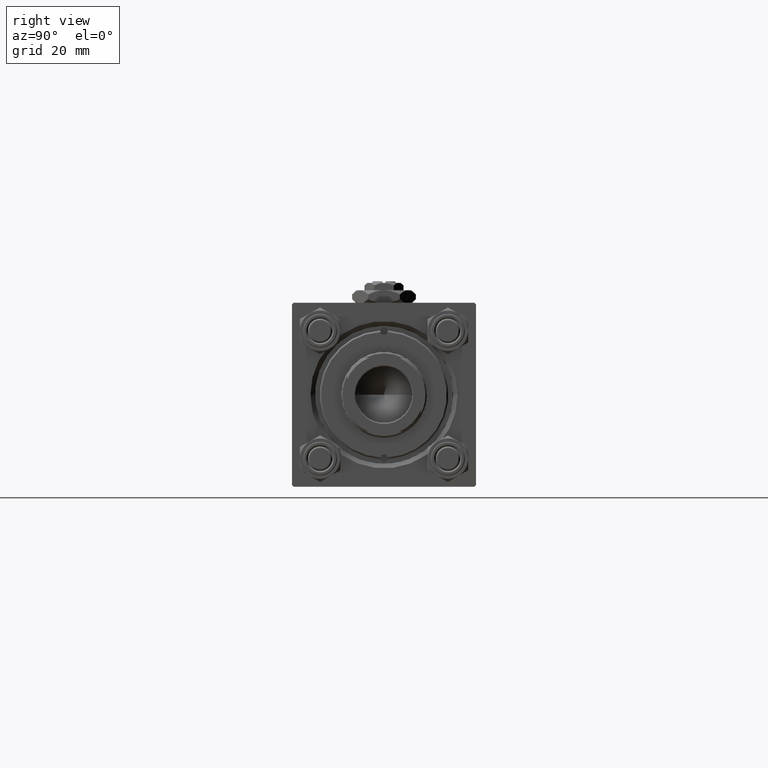
[diagram: clean part render]
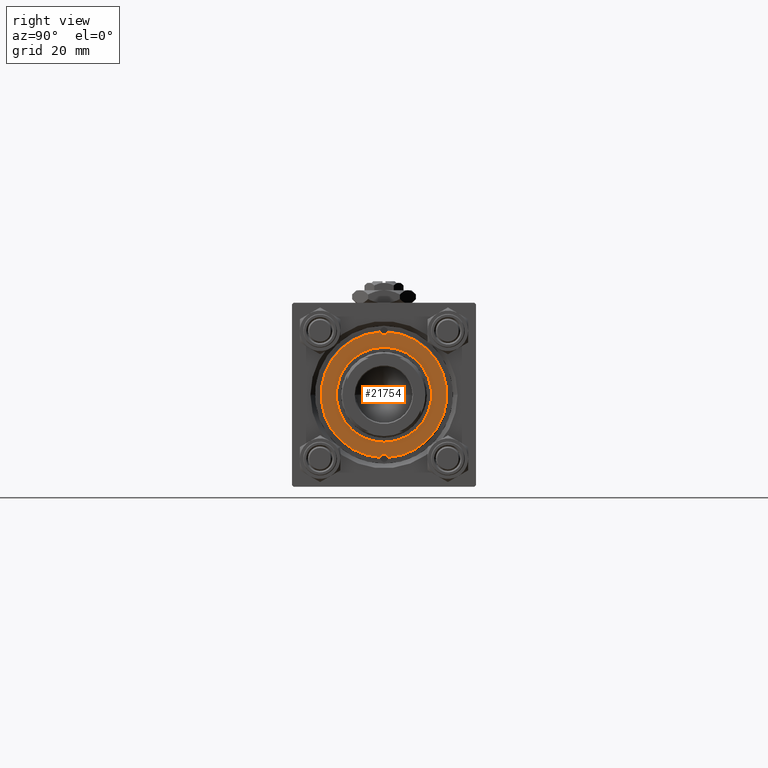
[diagram: same view with one face highlighted and labeled with its STEP entity id]
A machine part, right view. The second image highlights one B-rep face of the part: STEP entity #21754.
In plain terms, the highlighted planar face has unit normal (1, 0, 0).
Its self-contained STEP definition (entity closure, byte-faithful):
#295 = CIRCLE ( 'NONE', #42291, 1.250000000000001110 ) ;
#1180 = CARTESIAN_POINT ( 'NONE',  ( 20.46385542168674476, -1.216807823899045404, 38.69999999999999574 ) ) ;
#4464 = AXIS2_PLACEMENT_3D ( 'NONE', #41651, #46376, #5606 ) ;
#4501 = ORIENTED_EDGE ( 'NONE', *, *, #15216, .F. ) ;
#5257 = AXIS2_PLACEMENT_3D ( 'NONE', #17409, #33437, #49482 ) ;
#5295 = CARTESIAN_POINT ( 'NONE',  ( 0.000000000000000000, 0.000000000000000000, 38.69999999999999574 ) ) ;
#5371 = DIRECTION ( 'NONE',  ( 1.000000000000000000, 0.000000000000000000, 0.000000000000000000 ) ) ;
#5463 = ORIENTED_EDGE ( 'NONE', *, *, #19259, .F. ) ;
#5606 = DIRECTION ( 'NONE',  ( 1.000000000000000000, 0.000000000000000000, 0.000000000000000000 ) ) ;
#5640 = CARTESIAN_POINT ( 'NONE',  ( -20.75000000000000000, 0.000000000000000000, 38.69999999999999574 ) ) ;
#6091 = VERTEX_POINT ( 'NONE', #16730 ) ;
#6373 = VERTEX_POINT ( 'NONE', #51126 ) ;
#8628 = DIRECTION ( 'NONE',  ( 1.000000000000000000, 0.000000000000000000, -0.000000000000000000 ) ) ;
#9164 = ORIENTED_EDGE ( 'NONE', *, *, #44391, .F. ) ;
#10411 = CIRCLE ( 'NONE', #25554, 20.49999999999999645 ) ;
#10874 = EDGE_CURVE ( 'NONE', #6091, #22751, #10411, .T. ) ;
#11166 = DIRECTION ( 'NONE',  ( 1.000000000000000000, 0.000000000000000000, 0.000000000000000000 ) ) ;
#12794 = CIRCLE ( 'NONE', #37975, 1.250000000000001110 ) ;
#14100 = CARTESIAN_POINT ( 'NONE',  ( -15.50000000000000000, 1.898202538678397557E-15, 38.69999999999999574 ) ) ;
#15139 = CARTESIAN_POINT ( 'NONE',  ( 0.000000000000000000, 0.000000000000000000, 38.69999999999999574 ) ) ;
#15158 = CIRCLE ( 'NONE', #43721, 20.49999999999999645 ) ;
#15216 = EDGE_CURVE ( 'NONE', #6091, #25987, #50889, .T. ) ;
#16730 = CARTESIAN_POINT ( 'NONE',  ( -20.46385542168674476, -1.216807823899045626, 38.69999999999999574 ) ) ;
#17409 = CARTESIAN_POINT ( 'NONE',  ( 0.000000000000000000, 0.000000000000000000, 38.69999999999999574 ) ) ;
#17691 = DIRECTION ( 'NONE',  ( 0.000000000000000000, 0.000000000000000000, 1.000000000000000000 ) ) ;
#18329 = EDGE_CURVE ( 'NONE', #45158, #22751, #12794, .T. ) ;
#18557 = VERTEX_POINT ( 'NONE', #14100 ) ;
#18949 = DIRECTION ( 'NONE',  ( 1.000000000000000000, 0.000000000000000000, 0.000000000000000000 ) ) ;
#19259 = EDGE_CURVE ( 'NONE', #18557, #31176, #27959, .T. ) ;
#21217 = EDGE_CURVE ( 'NONE', #6373, #45158, #295, .T. ) ;
#21370 = DIRECTION ( 'NONE',  ( 1.000000000000000000, 0.000000000000000000, 0.000000000000000000 ) ) ;
#21715 = DIRECTION ( 'NONE',  ( -0.000000000000000000, -0.000000000000000000, 1.000000000000000000 ) ) ;
#21754 = ADVANCED_FACE ( 'NONE', ( #32828, #48867 ), #25725, .T. ) ;
#22362 = AXIS2_PLACEMENT_3D ( 'NONE', #5640, #21715, #25914 ) ;
#22751 = VERTEX_POINT ( 'NONE', #1180 ) ;
#25188 = EDGE_CURVE ( 'NONE', #25987, #44759, #35577, .T. ) ;
#25554 = AXIS2_PLACEMENT_3D ( 'NONE', #5295, #17691, #21370 ) ;
#25725 = PLANE ( 'NONE',  #47376 ) ;
#25914 = DIRECTION ( 'NONE',  ( 1.000000000000000000, 0.000000000000000000, 0.000000000000000000 ) ) ;
#25987 = VERTEX_POINT ( 'NONE', #39979 ) ;
#27562 = ORIENTED_EDGE ( 'NONE', *, *, #21217, .F. ) ;
#27959 = CIRCLE ( 'NONE', #5257, 15.50000000000000000 ) ;
#28528 = ORIENTED_EDGE ( 'NONE', *, *, #10874, .T. ) ;
#28557 = CARTESIAN_POINT ( 'NONE',  ( 15.50000000000000000, 0.000000000000000000, 38.69999999999999574 ) ) ;
#28849 = ORIENTED_EDGE ( 'NONE', *, *, #18329, .F. ) ;
#31106 = AXIS2_PLACEMENT_3D ( 'NONE', #51896, #46308, #18949 ) ;
#31170 = DIRECTION ( 'NONE',  ( 0.000000000000000000, 0.000000000000000000, 1.000000000000000000 ) ) ;
#31176 = VERTEX_POINT ( 'NONE', #28557 ) ;
#32828 = FACE_OUTER_BOUND ( 'NONE', #41889, .T. ) ;
#33278 = DIRECTION ( 'NONE',  ( -0.000000000000000000, -0.000000000000000000, 1.000000000000000000 ) ) ;
#33437 = DIRECTION ( 'NONE',  ( 0.000000000000000000, 0.000000000000000000, 1.000000000000000000 ) ) ;
#33606 = DIRECTION ( 'NONE',  ( 0.000000000000000000, 0.000000000000000000, 1.000000000000000000 ) ) ;
#33866 = CARTESIAN_POINT ( 'NONE',  ( 0.000000000000000000, 0.000000000000000000, 38.69999999999999574 ) ) ;
#34136 = CARTESIAN_POINT ( 'NONE',  ( 20.75000000000000000, 0.000000000000000000, 38.69999999999999574 ) ) ;
#35577 = CIRCLE ( 'NONE', #4464, 1.250000000000001110 ) ;
#37975 = AXIS2_PLACEMENT_3D ( 'NONE', #34136, #50185, #45202 ) ;
#39979 = CARTESIAN_POINT ( 'NONE',  ( -19.50000000000000000, 0.000000000000000000, 38.69999999999999574 ) ) ;
#40530 = CARTESIAN_POINT ( 'NONE',  ( 19.50000000000000000, 1.530808498934195022E-16, 38.69999999999999574 ) ) ;
#41192 = ORIENTED_EDGE ( 'NONE', *, *, #25188, .F. ) ;
#41232 = ORIENTED_EDGE ( 'NONE', *, *, #44723, .T. ) ;
#41447 = EDGE_LOOP ( 'NONE', ( #9164, #5463 ) ) ;
#41651 = CARTESIAN_POINT ( 'NONE',  ( -20.75000000000000000, 0.000000000000000000, 38.69999999999999574 ) ) ;
#41889 = EDGE_LOOP ( 'NONE', ( #4501, #28528, #28849, #27562, #41232, #41192 ) ) ;
#42291 = AXIS2_PLACEMENT_3D ( 'NONE', #49325, #33278, #5371 ) ;
#43721 = AXIS2_PLACEMENT_3D ( 'NONE', #15139, #31170, #11166 ) ;
#44391 = EDGE_CURVE ( 'NONE', #31176, #18557, #46230, .T. ) ;
#44723 = EDGE_CURVE ( 'NONE', #6373, #44759, #15158, .T. ) ;
#44759 = VERTEX_POINT ( 'NONE', #47481 ) ;
#45158 = VERTEX_POINT ( 'NONE', #40530 ) ;
#45202 = DIRECTION ( 'NONE',  ( 1.000000000000000000, 0.000000000000000000, 0.000000000000000000 ) ) ;
#46230 = CIRCLE ( 'NONE', #31106, 15.50000000000000000 ) ;
#46308 = DIRECTION ( 'NONE',  ( 0.000000000000000000, 0.000000000000000000, 1.000000000000000000 ) ) ;
#46376 = DIRECTION ( 'NONE',  ( -0.000000000000000000, -0.000000000000000000, 1.000000000000000000 ) ) ;
#47376 = AXIS2_PLACEMENT_3D ( 'NONE', #33866, #33606, #8628 ) ;
#47481 = CARTESIAN_POINT ( 'NONE',  ( -20.46385542168674476, 1.216807823899045404, 38.69999999999999574 ) ) ;
#48867 = FACE_BOUND ( 'NONE', #41447, .T. ) ;
#49325 = CARTESIAN_POINT ( 'NONE',  ( 20.75000000000000000, 0.000000000000000000, 38.69999999999999574 ) ) ;
#49482 = DIRECTION ( 'NONE',  ( 1.000000000000000000, 0.000000000000000000, 0.000000000000000000 ) ) ;
#50185 = DIRECTION ( 'NONE',  ( -0.000000000000000000, -0.000000000000000000, 1.000000000000000000 ) ) ;
#50889 = CIRCLE ( 'NONE', #22362, 1.250000000000001110 ) ;
#51126 = CARTESIAN_POINT ( 'NONE',  ( 20.46385542168674476, 1.216807823899045626, 38.69999999999999574 ) ) ;
#51896 = CARTESIAN_POINT ( 'NONE',  ( 0.000000000000000000, 0.000000000000000000, 38.69999999999999574 ) ) ;